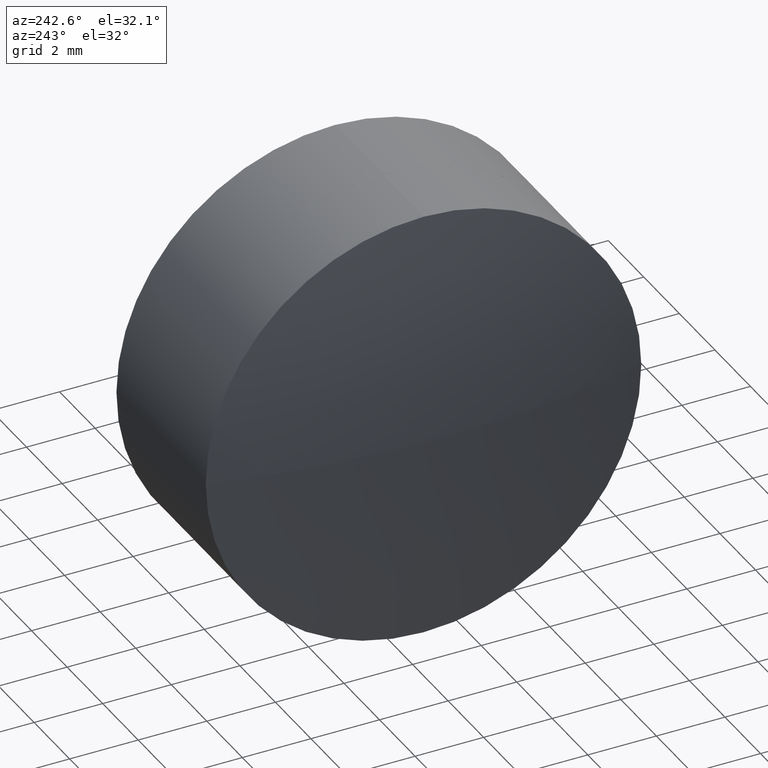
[diagram: clean part render]
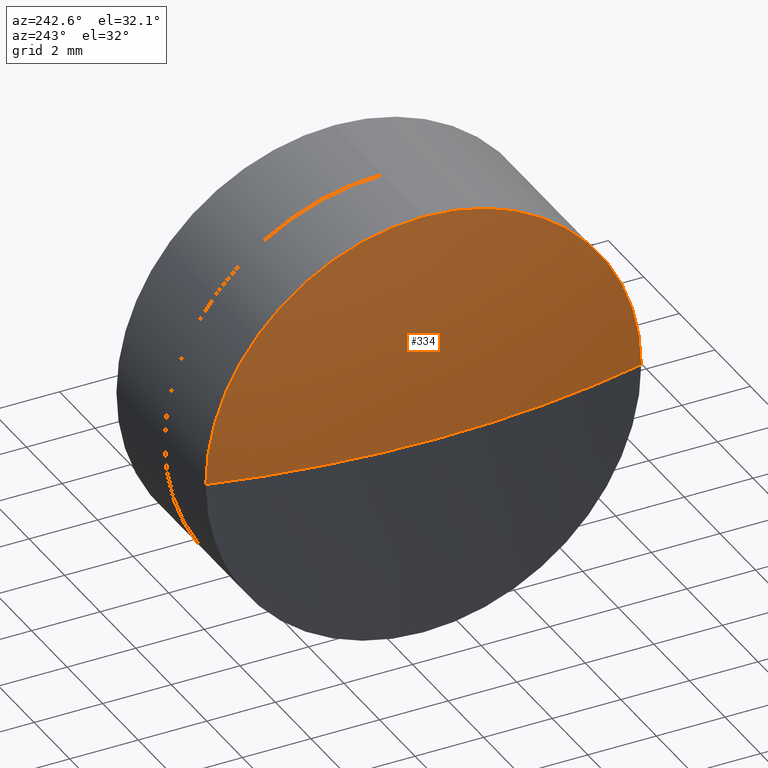
[diagram: same view with one face highlighted and labeled with its STEP entity id]
A machine part, auxiliary view. The second image highlights one B-rep face of the part: STEP entity #334.
In plain terms, the highlighted spherical surface has radius 26.34 mm.
Its self-contained STEP definition (entity closure, byte-faithful):
#10 = ORIENTED_EDGE ( 'NONE', *, *, #400, .T. ) ;
#51 = EDGE_CURVE ( 'NONE', #435, #176, #350, .T. ) ;
#70 = AXIS2_PLACEMENT_3D ( 'NONE', #399, #368, #168 ) ;
#73 = SPHERICAL_SURFACE ( 'NONE', #405, 26.33999999999976183 ) ;
#75 = CARTESIAN_POINT ( 'NONE',  ( -19.58046947869131316, 29.23725402614865843, 0.000000000000000000 ) ) ;
#108 = CIRCLE ( 'NONE', #167, 26.33999999999976183 ) ;
#114 = ORIENTED_EDGE ( 'NONE', *, *, #215, .F. ) ;
#117 = VERTEX_POINT ( 'NONE', #439 ) ;
#128 = DIRECTION ( 'NONE',  ( 0.000000000000000000, 1.224646799147353207E-16, -1.000000000000000000 ) ) ;
#133 = CIRCLE ( 'NONE', #336, 26.33999999999976538 ) ;
#147 = EDGE_CURVE ( 'NONE', #176, #117, #193, .T. ) ;
#148 = DIRECTION ( 'NONE',  ( -1.000000000000000000, -0.000000000000000000, -0.000000000000000000 ) ) ;
#160 = CARTESIAN_POINT ( 'NONE',  ( -19.58046947869131316, 29.23725402614865843, 0.000000000000000000 ) ) ;
#165 = CARTESIAN_POINT ( 'NONE',  ( -45.14358939782461988, 29.23725402614865843, 6.349999999999999645 ) ) ;
#167 = AXIS2_PLACEMENT_3D ( 'NONE', #75, #310, #214 ) ;
#168 = DIRECTION ( 'NONE',  ( 0.000000000000000000, 0.000000000000000000, 1.000000000000000000 ) ) ;
#176 = VERTEX_POINT ( 'NONE', #165 ) ;
#193 = CIRCLE ( 'NONE', #70, 6.349999999999999645 ) ;
#214 = DIRECTION ( 'NONE',  ( 1.000000000000000000, 0.000000000000000000, 0.000000000000000000 ) ) ;
#215 = EDGE_CURVE ( 'NONE', #435, #419, #133, .T. ) ;
#240 = FACE_OUTER_BOUND ( 'NONE', #331, .T. ) ;
#243 = DIRECTION ( 'NONE',  ( 0.000000000000000000, 1.000000000000000000, 0.000000000000000000 ) ) ;
#276 = ORIENTED_EDGE ( 'NONE', *, *, #147, .T. ) ;
#300 = DIRECTION ( 'NONE',  ( 0.000000000000000000, 1.000000000000000000, 1.224646799147353207E-16 ) ) ;
#310 = DIRECTION ( 'NONE',  ( -0.000000000000000000, 0.000000000000000000, 1.000000000000000000 ) ) ;
#331 = EDGE_LOOP ( 'NONE', ( #114, #345, #276, #10 ) ) ;
#334 = ADVANCED_FACE ( 'NONE', ( #240 ), #73, .T. ) ;
#336 = AXIS2_PLACEMENT_3D ( 'NONE', #160, #128, #300 ) ;
#340 = CARTESIAN_POINT ( 'NONE',  ( -45.92046947869107498, 29.23725402614865843, 0.000000000000000000 ) ) ;
#345 = ORIENTED_EDGE ( 'NONE', *, *, #51, .T. ) ;
#350 = CIRCLE ( 'NONE', #409, 6.349999999999999645 ) ;
#368 = DIRECTION ( 'NONE',  ( -1.000000000000000000, -0.000000000000000000, -0.000000000000000000 ) ) ;
#374 = DIRECTION ( 'NONE',  ( -0.000000000000000000, 0.000000000000000000, -1.000000000000000000 ) ) ;
#382 = CARTESIAN_POINT ( 'NONE',  ( -19.58046947869131316, 29.23725402614865843, 0.000000000000000000 ) ) ;
#392 = CARTESIAN_POINT ( 'NONE',  ( -45.14358939782461988, 29.23725402614865843, 0.000000000000000000 ) ) ;
#399 = CARTESIAN_POINT ( 'NONE',  ( -45.14358939782461988, 29.23725402614865843, 0.000000000000000000 ) ) ;
#400 = EDGE_CURVE ( 'NONE', #117, #419, #108, .T. ) ;
#405 = AXIS2_PLACEMENT_3D ( 'NONE', #382, #374, #243 ) ;
#409 = AXIS2_PLACEMENT_3D ( 'NONE', #392, #148, #430 ) ;
#419 = VERTEX_POINT ( 'NONE', #340 ) ;
#430 = DIRECTION ( 'NONE',  ( 0.000000000000000000, 0.000000000000000000, 1.000000000000000000 ) ) ;
#435 = VERTEX_POINT ( 'NONE', #446 ) ;
#439 = CARTESIAN_POINT ( 'NONE',  ( -45.14358939782461988, 35.58725402614855682, 0.000000000000000000 ) ) ;
#446 = CARTESIAN_POINT ( 'NONE',  ( -45.14358939782461988, 22.88725402614876003, -7.776507174585568903E-16 ) ) ;